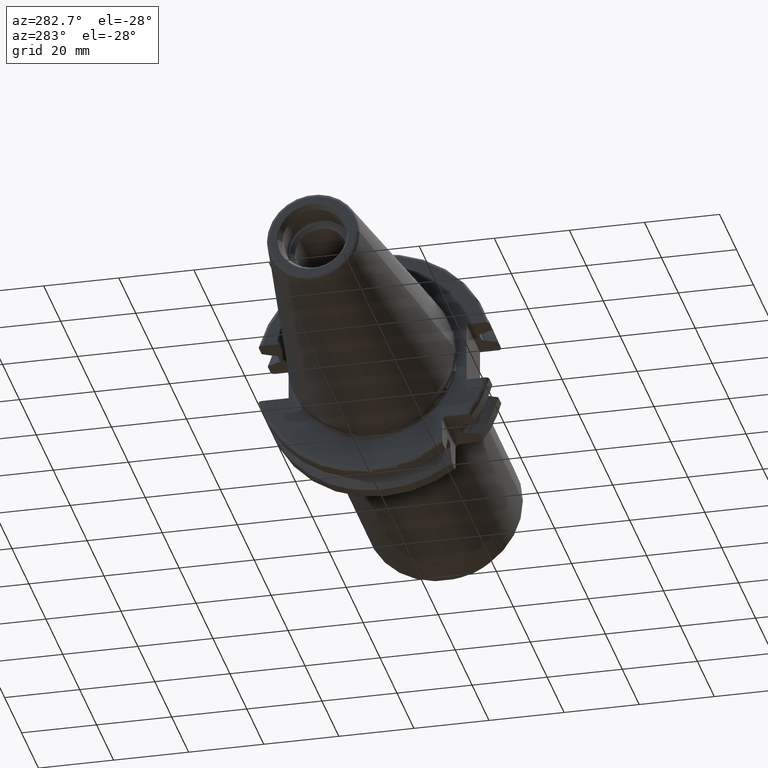
[diagram: clean part render]
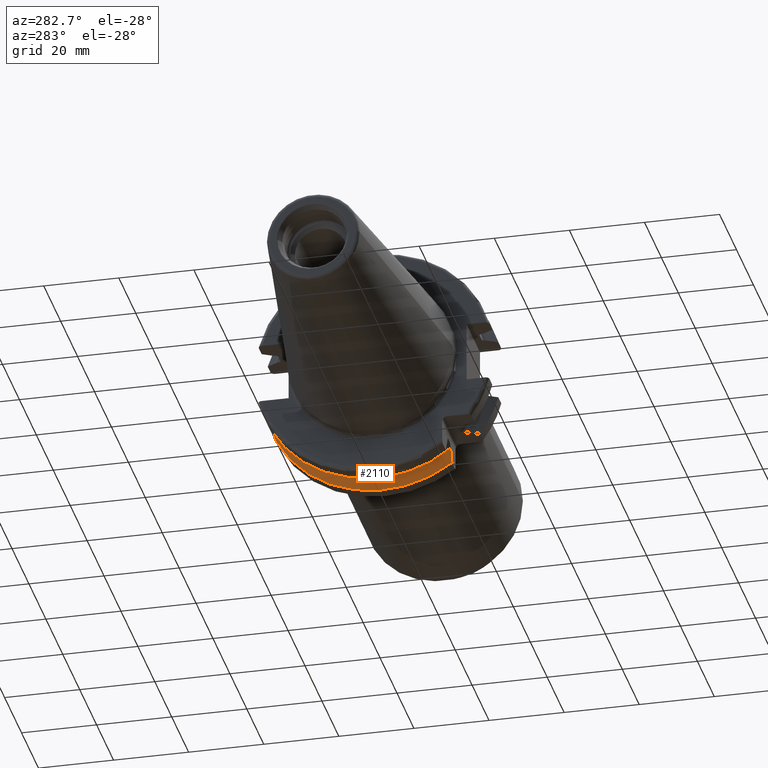
[diagram: same view with one face highlighted and labeled with its STEP entity id]
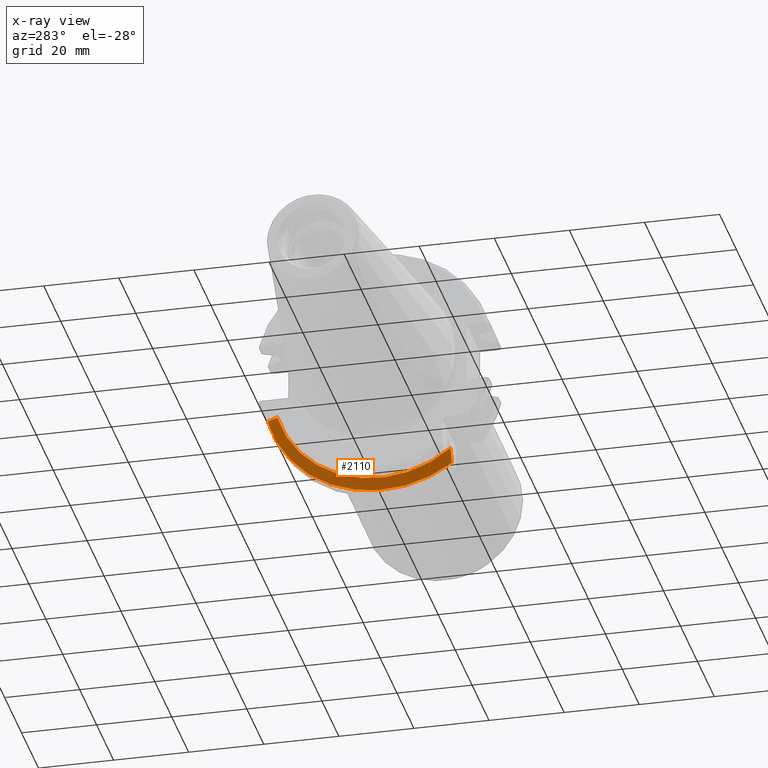
[diagram: x-ray of the same camera — body ghosted, the highlighted face saturated]
A machine part, auxiliary view. The second image highlights one B-rep face of the part: STEP entity #2110.
The next image is the same camera in x-ray: the body ghosted, the highlighted face saturated — about 0% of this face is hidden behind the body in this view.
In plain terms, the highlighted conical surface has half-angle 60 deg.
Its self-contained STEP definition (entity closure, byte-faithful):
#258=CARTESIAN_POINT('',(1.470405352042E1,0.E0,0.E0));
#259=DIRECTION('',(1.E0,0.E0,0.E0));
#260=DIRECTION('',(0.E0,-5.777253049980E-1,-8.162312613254E-1));
#261=AXIS2_PLACEMENT_3D('',#258,#259,#260);
#426=CARTESIAN_POINT('',(1.30875E1,2.780681820245E1,-8.1E0));
#427=CARTESIAN_POINT('',(1.326086175289E1,2.811956968242E1,-8.1E0));
#428=CARTESIAN_POINT('',(1.361176448515E1,2.875178670793E1,-8.1E0));
#429=CARTESIAN_POINT('',(1.415055493375E1,2.972014324708E1,-8.1E0));
#430=CARTESIAN_POINT('',(1.451816260441E1,3.037933474515E1,-8.1E0));
#431=CARTESIAN_POINT('',(1.470405352042E1,3.071231684927E1,-8.1E0));
#433=CARTESIAN_POINT('',(1.30875E1,0.E0,0.E0));
#434=DIRECTION('',(-1.E0,0.E0,0.E0));
#435=DIRECTION('',(0.E0,9.600957415706E-1,-2.796715341576E-1));
#436=AXIS2_PLACEMENT_3D('',#433,#434,#435);
#438=CARTESIAN_POINT('',(1.30875E1,-1.835E1,-2.240773613162E1));
#439=CARTESIAN_POINT('',(1.325213098463E1,-1.835E1,-2.277629848758E1));
#440=CARTESIAN_POINT('',(1.359130882027E1,-1.835E1,-2.352831190146E1));
#441=CARTESIAN_POINT('',(1.412957926498E1,-1.835E1,-2.469989032362E1));
#442=CARTESIAN_POINT('',(1.450914442104E1,-1.835E1,-2.551194640168E1));
#443=CARTESIAN_POINT('',(1.470405352042E1,-1.835E1,-2.592554543785E1));
#1462=CARTESIAN_POINT('',(1.30875E1,2.780681820245E1,-8.1E0));
#1464=VERTEX_POINT('',#1462);
#1476=CARTESIAN_POINT('',(1.30875E1,-1.835E1,-2.240773613162E1));
#1478=VERTEX_POINT('',#1476);
#1490=VERTEX_POINT('',#431);
#1606=VERTEX_POINT('',#443);
#2098=CARTESIAN_POINT('',(1.389577676021E1,0.E0,0.E0));
#2099=DIRECTION('',(1.E0,0.E0,0.E0));
#2100=DIRECTION('',(0.E0,-1.E0,0.E0));
#2101=AXIS2_PLACEMENT_3D('',#2098,#2099,#2100);
#2102=CONICAL_SURFACE('',#2101,3.036252358474E1,6.E1);
#2103=ORIENTED_EDGE('',*,*,#1815,.F.);
#2105=ORIENTED_EDGE('',*,*,#2104,.T.);
#2106=ORIENTED_EDGE('',*,*,#2077,.T.);
#2107=ORIENTED_EDGE('',*,*,#1926,.T.);
#2108=EDGE_LOOP('',(#2103,#2105,#2106,#2107));
#2109=FACE_OUTER_BOUND('',#2108,.F.);
#2110=ADVANCED_FACE('',(#2109),#2102,.T.);
#262=CIRCLE('',#261,3.17625E1);
#432=B_SPLINE_CURVE_WITH_KNOTS('',3,(#426,#427,#428,#429,#430,#431),
.UNSPECIFIED.,.F.,.F.,(4,1,1,4),(0.E0,3.333333333333E-1,6.666666666667E-1,1.E0),
.UNSPECIFIED.);
#437=CIRCLE('',#436,2.896254716948E1);
#444=B_SPLINE_CURVE_WITH_KNOTS('',3,(#438,#439,#440,#441,#442,#443),
.UNSPECIFIED.,.F.,.F.,(4,1,1,4),(0.E0,3.333333333333E-1,6.666666666667E-1,1.E0),
.UNSPECIFIED.);
#1815=EDGE_CURVE('',#1464,#1490,#432,.T.);
#1926=EDGE_CURVE('',#1606,#1490,#262,.T.);
#2077=EDGE_CURVE('',#1478,#1606,#444,.T.);
#2104=EDGE_CURVE('',#1464,#1478,#437,.T.);